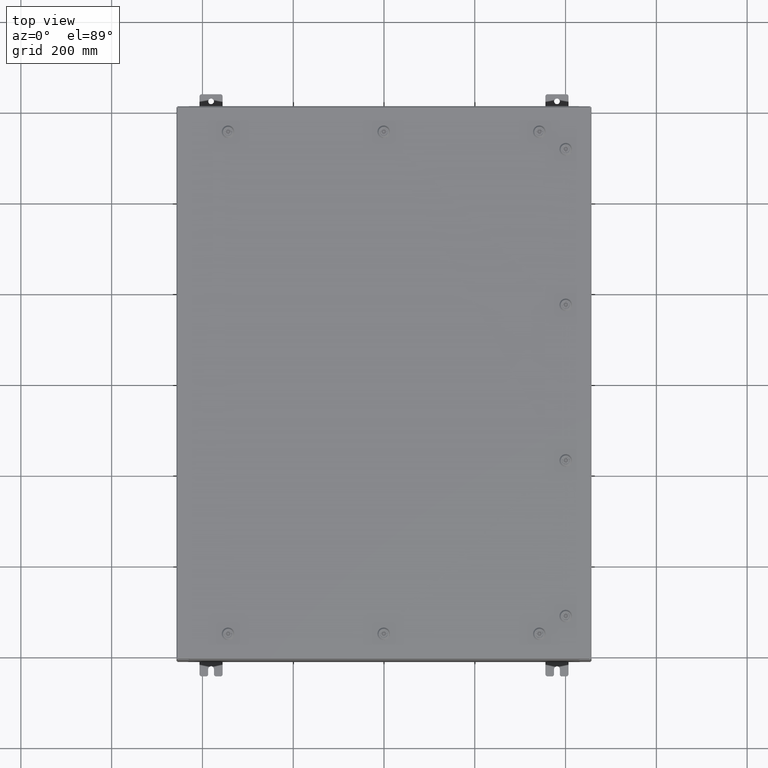
[diagram: clean part render]
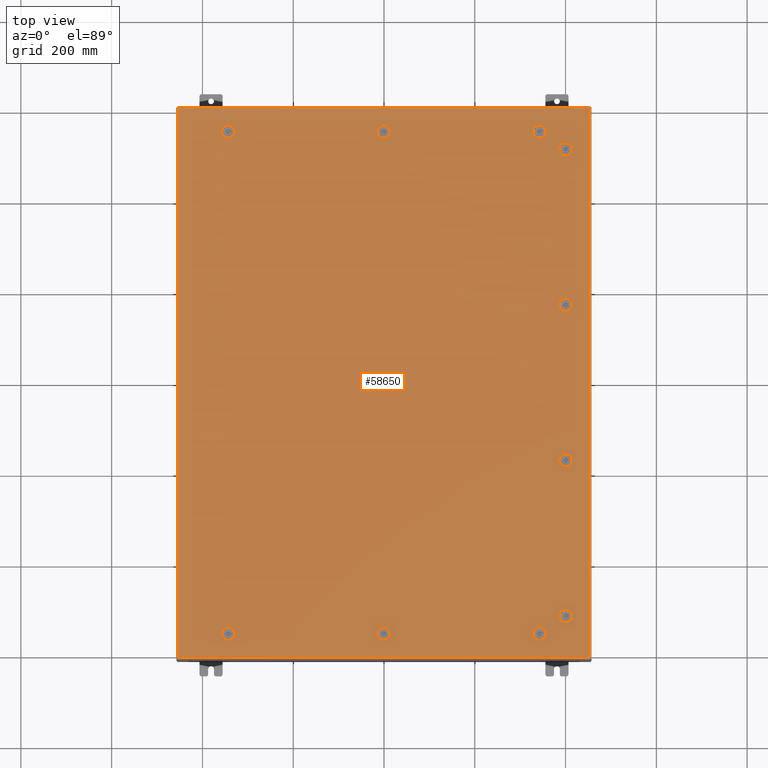
[diagram: same view with one face highlighted and labeled with its STEP entity id]
A machine part, top view. The second image highlights one B-rep face of the part: STEP entity #58650.
In plain terms, the highlighted planar face has unit normal (0, 0, -1).
Its self-contained STEP definition (entity closure, byte-faithful):
#114 = ORIENTED_EDGE ( 'NONE', *, *, #11369, .F. ) ;
#148 = CARTESIAN_POINT ( 'NONE',  ( 1.529834876451987200E-014, 21.78780000000000400, 0.0000000000000000000 ) ) ;
#204 = CARTESIAN_POINT ( 'NONE',  ( 1.529834876451987200E-014, -21.78780000000000400, -2.521317385144146900E-013 ) ) ;
#292 = ORIENTED_EDGE ( 'NONE', *, *, #1717, .F. ) ;
#316 = CARTESIAN_POINT ( 'NONE',  ( -13.05749999999999000, -21.78780000000000800, -2.521317385144146900E-013 ) ) ;
#360 = EDGE_CURVE ( 'NONE', #27199, #56763, #44827, .T. ) ;
#628 = CARTESIAN_POINT ( 'NONE',  ( 0.1994523752679067700, -22.18280000000000000, -2.548900087721007400E-013 ) ) ;
#905 = AXIS2_PLACEMENT_3D ( 'NONE', #148, #37285, #5467 ) ;
#1044 = CARTESIAN_POINT ( 'NONE',  ( -13.49999999999998600, -21.78780000000000800, -2.521317385144146900E-013 ) ) ;
#1289 = CARTESIAN_POINT ( 'NONE',  ( 15.39280000000001200, -6.550547624732131700, 0.0000000000000000000 ) ) ;
#1717 = EDGE_CURVE ( 'NONE', #64540, #63498, #8014, .T. ) ;
#2070 = VERTEX_POINT ( 'NONE', #22425 ) ;
#2235 = CARTESIAN_POINT ( 'NONE',  ( 13.30054762473209500, -22.18280000000000000, -1.620127811158077400E-013 ) ) ;
#2255 = CARTESIAN_POINT ( 'NONE',  ( -17.84979999999998100, 23.84980000000000900, -1.297627796990525000E-015 ) ) ;
#2387 = CARTESIAN_POINT ( 'NONE',  ( 0.1994523752678995500, -21.39280000000001200, -2.493734682567286900E-013 ) ) ;
#2428 = LINE ( 'NONE', #64406, #14943 ) ;
#2475 = DIRECTION ( 'NONE',  ( -6.982962677686266700E-015, -6.982962677686266700E-015, 1.000000000000000000 ) ) ;
#2577 = AXIS2_PLACEMENT_3D ( 'NONE', #47388, #15605, #52720 ) ;
#2673 = AXIS2_PLACEMENT_3D ( 'NONE', #45380, #13589, #50736 ) ;
#2732 = EDGE_CURVE ( 'NONE', #9360, #27199, #29537, .T. ) ;
#3062 = CIRCLE ( 'NONE', #19281, 0.4424999999999961700 ) ;
#3114 = CARTESIAN_POINT ( 'NONE',  ( 15.78780000000001500, 20.25000000000001400, 0.0000000000000000000 ) ) ;
#3214 = EDGE_CURVE ( 'NONE', #6876, #56380, #44478, .T. ) ;
#3348 = CARTESIAN_POINT ( 'NONE',  ( -17.84979999999999800, -23.84980000000000200, 1.946441695485787500E-015 ) ) ;
#3436 = VERTEX_POINT ( 'NONE', #57115 ) ;
#3569 = VERTEX_POINT ( 'NONE', #68678 ) ;
#3762 = CARTESIAN_POINT ( 'NONE',  ( 16.18280000000000700, 6.949452375267900300, 0.0000000000000000000 ) ) ;
#3792 = DIRECTION ( 'NONE',  ( 0.0000000000000000000, 1.000000000000000000, 6.982962677686252500E-015 ) ) ;
#3856 = LINE ( 'NONE', #50158, #60310 ) ;
#3992 = FACE_BOUND ( 'NONE', #67493, .T. ) ;
#4039 = DIRECTION ( 'NONE',  ( 6.982962677686266700E-015, -0.0000000000000000000, 1.000000000000000000 ) ) ;
#4128 = VERTEX_POINT ( 'NONE', #67706 ) ;
#4130 = CIRCLE ( 'NONE', #54337, 0.4424999999999983400 ) ;
#4192 = EDGE_LOOP ( 'NONE', ( #23355, #7007, #17163, #31143, #54867 ) ) ;
#4514 = VERTEX_POINT ( 'NONE', #27669 ) ;
#4670 = ORIENTED_EDGE ( 'NONE', *, *, #34834, .F. ) ;
#4869 = EDGE_CURVE ( 'NONE', #31888, #43983, #6940, .T. ) ;
#5452 = LINE ( 'NONE', #20909, #10474 ) ;
#5467 = DIRECTION ( 'NONE',  ( 1.000000000000000000, 0.0000000000000000000, 0.0000000000000000000 ) ) ;
#5519 = DIRECTION ( 'NONE',  ( 0.0000000000000000000, 1.000000000000000000, 6.982962677686270700E-015 ) ) ;
#5687 = CIRCLE ( 'NONE', #53292, 0.4424999999999972800 ) ;
#5698 = CARTESIAN_POINT ( 'NONE',  ( 15.78780000000001000, 6.750000000000014200, 0.0000000000000000000 ) ) ;
#5859 = ORIENTED_EDGE ( 'NONE', *, *, #360, .F. ) ;
#5868 = VECTOR ( 'NONE', #64708, 39.37007874015748100 ) ;
#6087 = DIRECTION ( 'NONE',  ( 1.095739467627844000E-014, -1.000000000000000000, -6.982962677686384300E-015 ) ) ;
#6234 = VERTEX_POINT ( 'NONE', #41890 ) ;
#6370 = DIRECTION ( 'NONE',  ( 0.0000000000000000000, 1.000000000000000000, 6.982962677686270700E-015 ) ) ;
#6768 = EDGE_CURVE ( 'NONE', #66684, #54772, #32676, .T. ) ;
#6876 = VERTEX_POINT ( 'NONE', #40912 ) ;
#6935 = CARTESIAN_POINT ( 'NONE',  ( -0.1994523752678657400, 22.18280000000000400, 0.0000000000000000000 ) ) ;
#6940 = CIRCLE ( 'NONE', #9236, 0.4424999999999983400 ) ;
#7007 = ORIENTED_EDGE ( 'NONE', *, *, #50921, .F. ) ;
#7156 = DIRECTION ( 'NONE',  ( -0.0000000000000000000, -6.982962677686266700E-015, 1.000000000000000000 ) ) ;
#7293 = DIRECTION ( 'NONE',  ( 1.000000000000000000, -0.0000000000000000000, -0.0000000000000000000 ) ) ;
#7321 = AXIS2_PLACEMENT_3D ( 'NONE', #13591, #50740, #18952 ) ;
#7336 = VECTOR ( 'NONE', #6087, 39.37007874015748100 ) ;
#7376 = VERTEX_POINT ( 'NONE', #63440 ) ;
#8014 = LINE ( 'NONE', #19282, #45407 ) ;
#8020 = AXIS2_PLACEMENT_3D ( 'NONE', #5698, #42850, #11059 ) ;
#8456 = DIRECTION ( 'NONE',  ( 1.000000000000000000, 0.0000000000000000000, 0.0000000000000000000 ) ) ;
#8461 = VECTOR ( 'NONE', #47154, 39.37007874015748100 ) ;
#8500 = AXIS2_PLACEMENT_3D ( 'NONE', #54704, #22913, #60015 ) ;
#8864 = AXIS2_PLACEMENT_3D ( 'NONE', #27132, #22047, #59177 ) ;
#8916 = CIRCLE ( 'NONE', #2673, 0.4424999999999983400 ) ;
#8968 = LINE ( 'NONE', #44402, #46362 ) ;
#9079 = CIRCLE ( 'NONE', #41636, 0.4424999999999983400 ) ;
#9236 = AXIS2_PLACEMENT_3D ( 'NONE', #34290, #2475, #39629 ) ;
#9360 = VERTEX_POINT ( 'NONE', #59868 ) ;
#9420 = VERTEX_POINT ( 'NONE', #6935 ) ;
#9436 = AXIS2_PLACEMENT_3D ( 'NONE', #46056, #14273, #51382 ) ;
#9492 = CARTESIAN_POINT ( 'NONE',  ( 0.1994523752679054600, -22.18280000000000000, -2.548900087721007400E-013 ) ) ;
#9713 = VECTOR ( 'NONE', #48654, 39.37007874015748100 ) ;
#9785 = LINE ( 'NONE', #30525, #67965 ) ;
#9908 = DIRECTION ( 'NONE',  ( -1.000000000000000000, 0.0000000000000000000, 7.785697190086082800E-029 ) ) ;
#10000 = CARTESIAN_POINT ( 'NONE',  ( -13.30054762473209400, 22.18280000000000000, 0.0000000000000000000 ) ) ;
#10077 = EDGE_CURVE ( 'NONE', #4514, #47616, #17546, .T. ) ;
#10338 = CARTESIAN_POINT ( 'NONE',  ( -13.05749999999998900, 21.78780000000000400, 0.0000000000000000000 ) ) ;
#10462 = CARTESIAN_POINT ( 'NONE',  ( 16.18280000000001500, -20.44945237526789600, -1.427977627156185100E-013 ) ) ;
#10474 = VECTOR ( 'NONE', #36678, 39.37007874015748100 ) ;
#10587 = EDGE_LOOP ( 'NONE', ( #57619, #5859, #22052, #16906 ) ) ;
#11059 = DIRECTION ( 'NONE',  ( 1.000000000000000000, 0.0000000000000000000, 0.0000000000000000000 ) ) ;
#11365 = LINE ( 'NONE', #53961, #9713 ) ;
#11369 = EDGE_CURVE ( 'NONE', #56351, #17987, #4130, .T. ) ;
#11452 = EDGE_CURVE ( 'NONE', #67426, #54905, #27351, .T. ) ;
#11551 = EDGE_CURVE ( 'NONE', #56380, #7376, #64712, .T. ) ;
#11611 = CARTESIAN_POINT ( 'NONE',  ( 0.4425000000000125500, 21.78780000000000400, 0.0000000000000000000 ) ) ;
#12126 = ORIENTED_EDGE ( 'NONE', *, *, #6768, .F. ) ;
#12135 = VERTEX_POINT ( 'NONE', #64559 ) ;
#12138 = VERTEX_POINT ( 'NONE', #32767 ) ;
#12416 = AXIS2_PLACEMENT_3D ( 'NONE', #38992, #7156, #44319 ) ;
#12653 = CARTESIAN_POINT ( 'NONE',  ( -17.84979999999999800, -23.84980000000000200, 1.946441695485787500E-015 ) ) ;
#13006 = EDGE_CURVE ( 'NONE', #14936, #31888, #48029, .T. ) ;
#13050 = ORIENTED_EDGE ( 'NONE', *, *, #55539, .F. ) ;
#13354 = CARTESIAN_POINT ( 'NONE',  ( 13.49999999999998600, 21.78780000000000400, -9.426999614876453700E-014 ) ) ;
#13589 = DIRECTION ( 'NONE',  ( -0.0000000000000000000, -6.982962677686266700E-015, 1.000000000000000000 ) ) ;
#13591 = CARTESIAN_POINT ( 'NONE',  ( 13.49999999999998600, 21.78780000000000400, -9.426999614876453700E-014 ) ) ;
#13793 = ORIENTED_EDGE ( 'NONE', *, *, #47158, .F. ) ;
#13927 = AXIS2_PLACEMENT_3D ( 'NONE', #13354, #50482, #18694 ) ;
#14273 = DIRECTION ( 'NONE',  ( 0.0000000000000000000, 0.0000000000000000000, 1.000000000000000000 ) ) ;
#14936 = VERTEX_POINT ( 'NONE', #67712 ) ;
#14943 = VECTOR ( 'NONE', #53960, 39.37007874015748100 ) ;
#15209 = ORIENTED_EDGE ( 'NONE', *, *, #21620, .F. ) ;
#15476 = VECTOR ( 'NONE', #22111, 39.37007874015748100 ) ;
#15605 = DIRECTION ( 'NONE',  ( -0.0000000000000000000, -6.982962677686266700E-015, 1.000000000000000000 ) ) ;
#15709 = CIRCLE ( 'NONE', #38986, 0.4424999999999983400 ) ;
#16043 = CARTESIAN_POINT ( 'NONE',  ( 13.49999999999998600, -21.78780000000000400, -1.578617423656501800E-013 ) ) ;
#16081 = VERTEX_POINT ( 'NONE', #27490 ) ;
#16700 = CARTESIAN_POINT ( 'NONE',  ( 13.30054762473209400, 22.18280000000000000, -9.287722765629296100E-014 ) ) ;
#16736 = PLANE ( 'NONE',  #8864 ) ;
#16906 = ORIENTED_EDGE ( 'NONE', *, *, #45552, .F. ) ;
#17163 = ORIENTED_EDGE ( 'NONE', *, *, #4869, .F. ) ;
#17539 = ORIENTED_EDGE ( 'NONE', *, *, #65737, .F. ) ;
#17544 = CARTESIAN_POINT ( 'NONE',  ( 13.30054762473210400, -21.39280000000001200, -1.564962406004356200E-013 ) ) ;
#17546 = CIRCLE ( 'NONE', #8500, 0.4424999999999983400 ) ;
#17826 = VERTEX_POINT ( 'NONE', #11611 ) ;
#17830 = CARTESIAN_POINT ( 'NONE',  ( 17.84980000000000200, 23.84980000000000900, 1.946441695485787500E-015 ) ) ;
#17973 = ORIENTED_EDGE ( 'NONE', *, *, #59326, .F. ) ;
#17987 = VERTEX_POINT ( 'NONE', #46992 ) ;
#17998 = AXIS2_PLACEMENT_3D ( 'NONE', #67414, #35582, #3792 ) ;
#18120 = FACE_BOUND ( 'NONE', #61796, .T. ) ;
#18251 = DIRECTION ( 'NONE',  ( -0.0000000000000000000, -6.982962677686266700E-015, 1.000000000000000000 ) ) ;
#18375 = DIRECTION ( 'NONE',  ( -5.478697338139235000E-015, 1.000000000000000000, -0.0000000000000000000 ) ) ;
#18548 = AXIS2_PLACEMENT_3D ( 'NONE', #53415, #21637, #58759 ) ;
#18643 = CARTESIAN_POINT ( 'NONE',  ( -13.69945237526786700, 22.18280000000000400, 0.0000000000000000000 ) ) ;
#18694 = DIRECTION ( 'NONE',  ( -1.000000000000000000, 0.0000000000000000000, 6.982962677686269100E-015 ) ) ;
#18952 = DIRECTION ( 'NONE',  ( -1.000000000000000000, 0.0000000000000000000, 6.982962677686270700E-015 ) ) ;
#19126 = VERTEX_POINT ( 'NONE', #2255 ) ;
#19239 = DIRECTION ( 'NONE',  ( -6.982962677686266700E-015, -6.982962677686266700E-015, 1.000000000000000000 ) ) ;
#19281 = AXIS2_PLACEMENT_3D ( 'NONE', #20819, #57964, #26128 ) ;
#19282 = CARTESIAN_POINT ( 'NONE',  ( 0.1994523752678995500, 21.39280000000001200, 0.0000000000000000000 ) ) ;
#19312 = ORIENTED_EDGE ( 'NONE', *, *, #50814, .F. ) ;
#19549 = VECTOR ( 'NONE', #60053, 39.37007874015748100 ) ;
#19705 = CARTESIAN_POINT ( 'NONE',  ( 15.39280000000001500, -6.949452375267905600, -4.852776656685395900E-014 ) ) ;
#19707 = DIRECTION ( 'NONE',  ( 0.0000000000000000000, 0.0000000000000000000, 1.000000000000000000 ) ) ;
#19715 = AXIS2_PLACEMENT_3D ( 'NONE', #56523, #24681, #61829 ) ;
#19824 = FACE_BOUND ( 'NONE', #53210, .T. ) ;
#19835 = DIRECTION ( 'NONE',  ( -1.000000000000000000, -0.0000000000000000000, -0.0000000000000000000 ) ) ;
#19859 = EDGE_CURVE ( 'NONE', #21521, #59043, #28524, .T. ) ;
#19872 = CIRCLE ( 'NONE', #32445, 0.4424999999999983400 ) ;
#20095 = VERTEX_POINT ( 'NONE', #22719 ) ;
#20648 = CARTESIAN_POINT ( 'NONE',  ( 1.529834876451987200E-014, 21.78780000000000400, 0.0000000000000000000 ) ) ;
#20819 = CARTESIAN_POINT ( 'NONE',  ( 15.78780000000001500, 20.25000000000001400, 0.0000000000000000000 ) ) ;
#20909 = CARTESIAN_POINT ( 'NONE',  ( 15.39280000000002200, 20.44945237526790300, 0.0000000000000000000 ) ) ;
#20949 = CIRCLE ( 'NONE', #42824, 0.4424999999999983400 ) ;
#21201 = VECTOR ( 'NONE', #22863, 39.37007874015748100 ) ;
#21339 = AXIS2_PLACEMENT_3D ( 'NONE', #204, #37345, #5519 ) ;
#21362 = DIRECTION ( 'NONE',  ( 1.000000000000000000, 0.0000000000000000000, 6.982962677686270700E-015 ) ) ;
#21521 = VERTEX_POINT ( 'NONE', #9492 ) ;
#21620 = EDGE_CURVE ( 'NONE', #17826, #55172, #67299, .T. ) ;
#21637 = DIRECTION ( 'NONE',  ( 0.0000000000000000000, 0.0000000000000000000, 1.000000000000000000 ) ) ;
#21913 = EDGE_LOOP ( 'NONE', ( #28600, #34782, #41594, #114, #17973 ) ) ;
#22047 = DIRECTION ( 'NONE',  ( 0.0000000000000000000, 0.0000000000000000000, -1.000000000000000000 ) ) ;
#22052 = ORIENTED_EDGE ( 'NONE', *, *, #2732, .F. ) ;
#22111 = DIRECTION ( 'NONE',  ( 5.478697338139235000E-015, 1.000000000000000000, 6.982962677686265900E-015 ) ) ;
#22368 = ORIENTED_EDGE ( 'NONE', *, *, #59760, .F. ) ;
#22425 = CARTESIAN_POINT ( 'NONE',  ( 13.30054762473210400, -21.39280000000001200, -1.564962406004356200E-013 ) ) ;
#22492 = DIRECTION ( 'NONE',  ( 5.478697338139280000E-015, 1.000000000000000000, 6.982962677686382700E-015 ) ) ;
#22529 = CARTESIAN_POINT ( 'NONE',  ( 15.39280000000001500, -6.949452375267904700, -4.852776656685395200E-014 ) ) ;
#22703 = CARTESIAN_POINT ( 'NONE',  ( -13.30054762473209500, -22.18280000000000400, -2.548900087721007400E-013 ) ) ;
#22719 = CARTESIAN_POINT ( 'NONE',  ( -13.69945237526786900, 21.39280000000001200, 0.0000000000000000000 ) ) ;
#22863 = DIRECTION ( 'NONE',  ( -1.000000000000000000, -0.0000000000000000000, -6.982962677686265900E-015 ) ) ;
#22913 = DIRECTION ( 'NONE',  ( 0.0000000000000000000, 0.0000000000000000000, 1.000000000000000000 ) ) ;
#23167 = EDGE_CURVE ( 'NONE', #9420, #64540, #52230, .T. ) ;
#23295 = DIRECTION ( 'NONE',  ( -5.478697338139280000E-015, 1.000000000000000000, -0.0000000000000000000 ) ) ;
#23355 = ORIENTED_EDGE ( 'NONE', *, *, #27429, .F. ) ;
#23386 = LINE ( 'NONE', #64690, #64058 ) ;
#23977 = LINE ( 'NONE', #12653, #36411 ) ;
#24666 = ORIENTED_EDGE ( 'NONE', *, *, #11551, .F. ) ;
#24681 = DIRECTION ( 'NONE',  ( -0.0000000000000000000, -6.982962677686266700E-015, 1.000000000000000000 ) ) ;
#24902 = CIRCLE ( 'NONE', #47113, 0.4424999999999961700 ) ;
#25017 = CARTESIAN_POINT ( 'NONE',  ( 1.529834876451987200E-014, -21.78780000000000400, -2.521317385144146900E-013 ) ) ;
#25182 = CARTESIAN_POINT ( 'NONE',  ( 15.39280000000002800, -20.44945237526790300, -1.427977627156185100E-013 ) ) ;
#25293 = ORIENTED_EDGE ( 'NONE', *, *, #34950, .F. ) ;
#25309 = EDGE_CURVE ( 'NONE', #68803, #16081, #3062, .T. ) ;
#25574 = CIRCLE ( 'NONE', #12416, 0.4424999999999983400 ) ;
#25596 = EDGE_CURVE ( 'NONE', #56763, #56043, #63674, .T. ) ;
#25963 = DIRECTION ( 'NONE',  ( 1.000000000000000000, 0.0000000000000000000, 0.0000000000000000000 ) ) ;
#26128 = DIRECTION ( 'NONE',  ( 1.000000000000000000, 0.0000000000000000000, 0.0000000000000000000 ) ) ;
#26371 = VERTEX_POINT ( 'NONE', #10462 ) ;
#26799 = CARTESIAN_POINT ( 'NONE',  ( 16.18280000000000700, -6.550547624732131700, -4.574222958191090100E-014 ) ) ;
#27132 = CARTESIAN_POINT ( 'NONE',  ( 0.0000000000000000000, 0.0000000000000000000, 0.0000000000000000000 ) ) ;
#27199 = VERTEX_POINT ( 'NONE', #26799 ) ;
#27351 = LINE ( 'NONE', #33537, #68095 ) ;
#27429 = EDGE_CURVE ( 'NONE', #62252, #2070, #35310, .T. ) ;
#27490 = CARTESIAN_POINT ( 'NONE',  ( 16.18280000000001500, 20.05054762473213300, 0.0000000000000000000 ) ) ;
#27669 = CARTESIAN_POINT ( 'NONE',  ( -13.30054762473210200, 21.39280000000001200, 0.0000000000000000000 ) ) ;
#27712 = VERTEX_POINT ( 'NONE', #40490 ) ;
#28184 = DIRECTION ( 'NONE',  ( -0.0000000000000000000, -6.982962677686266700E-015, 1.000000000000000000 ) ) ;
#28278 = CARTESIAN_POINT ( 'NONE',  ( 13.69945237526786900, -22.18280000000000400, -1.592272441308647100E-013 ) ) ;
#28524 = CIRCLE ( 'NONE', #21339, 0.4424999999999983400 ) ;
#28600 = ORIENTED_EDGE ( 'NONE', *, *, #68829, .F. ) ;
#28653 = EDGE_CURVE ( 'NONE', #37449, #3436, #9079, .T. ) ;
#28693 = DIRECTION ( 'NONE',  ( 1.000000000000000000, -1.095739467627832000E-014, 6.982962677686152300E-015 ) ) ;
#28810 = DIRECTION ( 'NONE',  ( 0.0000000000000000000, 0.0000000000000000000, 1.000000000000000000 ) ) ;
#28915 = ORIENTED_EDGE ( 'NONE', *, *, #53132, .F. ) ;
#29217 = ORIENTED_EDGE ( 'NONE', *, *, #28653, .F. ) ;
#29227 = ORIENTED_EDGE ( 'NONE', *, *, #25309, .F. ) ;
#29256 = VERTEX_POINT ( 'NONE', #29552 ) ;
#29361 = EDGE_CURVE ( 'NONE', #54772, #54523, #15709, .T. ) ;
#29537 = LINE ( 'NONE', #48588, #15476 ) ;
#29552 = CARTESIAN_POINT ( 'NONE',  ( 16.18280000000000700, 6.550547624732131700, 0.0000000000000000000 ) ) ;
#29707 = CARTESIAN_POINT ( 'NONE',  ( 13.69945237526787100, -21.39280000000001200, 0.0000000000000000000 ) ) ;
#30179 = CIRCLE ( 'NONE', #19715, 0.4424999999999983400 ) ;
#30351 = DIRECTION ( 'NONE',  ( 0.0000000000000000000, 1.000000000000000000, 6.982962677686270700E-015 ) ) ;
#30446 = ORIENTED_EDGE ( 'NONE', *, *, #41251, .F. ) ;
#30525 = CARTESIAN_POINT ( 'NONE',  ( 15.39280000000001900, 6.949452375267904700, 0.0000000000000000000 ) ) ;
#30574 = FACE_OUTER_BOUND ( 'NONE', #58580, .T. ) ;
#30841 = ORIENTED_EDGE ( 'NONE', *, *, #42975, .F. ) ;
#31143 = ORIENTED_EDGE ( 'NONE', *, *, #13006, .F. ) ;
#31387 = ORIENTED_EDGE ( 'NONE', *, *, #23167, .F. ) ;
#31496 = EDGE_CURVE ( 'NONE', #6234, #12135, #35468, .T. ) ;
#31554 = EDGE_LOOP ( 'NONE', ( #30446, #13793, #19312, #30841, #57668 ) ) ;
#31621 = LINE ( 'NONE', #628, #44084 ) ;
#31849 = EDGE_LOOP ( 'NONE', ( #58789, #17539, #60834, #29217 ) ) ;
#31888 = VERTEX_POINT ( 'NONE', #28278 ) ;
#32210 = FACE_BOUND ( 'NONE', #21913, .T. ) ;
#32302 = VERTEX_POINT ( 'NONE', #3348 ) ;
#32445 = AXIS2_PLACEMENT_3D ( 'NONE', #1044, #38217, #6370 ) ;
#32501 = EDGE_CURVE ( 'NONE', #4128, #68803, #5452, .T. ) ;
#32676 = LINE ( 'NONE', #45565, #59254 ) ;
#32767 = CARTESIAN_POINT ( 'NONE',  ( 15.39280000000001400, 6.550547624732131700, 0.0000000000000000000 ) ) ;
#32914 = DIRECTION ( 'NONE',  ( 0.0000000000000000000, -1.000000000000000000, 0.0000000000000000000 ) ) ;
#33130 = CARTESIAN_POINT ( 'NONE',  ( 13.94249999999998500, -21.78780000000000400, -1.547717813807740000E-013 ) ) ;
#33375 = AXIS2_PLACEMENT_3D ( 'NONE', #3114, #40281, #8456 ) ;
#33537 = CARTESIAN_POINT ( 'NONE',  ( 13.30054762473209400, 22.18280000000000000, -9.287722765629296100E-014 ) ) ;
#33900 = VERTEX_POINT ( 'NONE', #51545 ) ;
#34290 = CARTESIAN_POINT ( 'NONE',  ( 13.49999999999998600, -21.78780000000000400, -1.578617423656501800E-013 ) ) ;
#34600 = ORIENTED_EDGE ( 'NONE', *, *, #63229, .T. ) ;
#34766 = CARTESIAN_POINT ( 'NONE',  ( -0.1994523752678689600, -21.39280000000001200, -2.493734682567286400E-013 ) ) ;
#34782 = ORIENTED_EDGE ( 'NONE', *, *, #64028, .F. ) ;
#34834 = EDGE_CURVE ( 'NONE', #60796, #4128, #52344, .T. ) ;
#34950 = EDGE_CURVE ( 'NONE', #7376, #67426, #50676, .T. ) ;
#35022 = DIRECTION ( 'NONE',  ( 1.000000000000000000, -0.0000000000000000000, -0.0000000000000000000 ) ) ;
#35310 = LINE ( 'NONE', #17544, #21201 ) ;
#35468 = CIRCLE ( 'NONE', #2577, 0.4424999999999983400 ) ;
#35485 = CIRCLE ( 'NONE', #905, 0.4424999999999972800 ) ;
#35582 = DIRECTION ( 'NONE',  ( -0.0000000000000000000, -6.982962677686266700E-015, 1.000000000000000000 ) ) ;
#35855 = CARTESIAN_POINT ( 'NONE',  ( 13.49999999999998600, 21.78780000000000400, -9.426999614876453700E-014 ) ) ;
#36294 = EDGE_CURVE ( 'NONE', #12135, #67680, #65484, .T. ) ;
#36411 = VECTOR ( 'NONE', #7293, 39.37007874015748100 ) ;
#36499 = VECTOR ( 'NONE', #9908, 39.37007874015748100 ) ;
#36678 = DIRECTION ( 'NONE',  ( -1.095739467627844000E-014, -1.000000000000000000, 0.0000000000000000000 ) ) ;
#37168 = EDGE_CURVE ( 'NONE', #16081, #60796, #8968, .T. ) ;
#37204 = FACE_BOUND ( 'NONE', #10587, .T. ) ;
#37285 = DIRECTION ( 'NONE',  ( 0.0000000000000000000, 0.0000000000000000000, 1.000000000000000000 ) ) ;
#37345 = DIRECTION ( 'NONE',  ( -0.0000000000000000000, -6.982962677686266700E-015, 1.000000000000000000 ) ) ;
#37449 = VERTEX_POINT ( 'NONE', #3762 ) ;
#37920 = CARTESIAN_POINT ( 'NONE',  ( 15.39280000000002800, -20.44945237526790300, -1.427977627156185600E-013 ) ) ;
#38217 = DIRECTION ( 'NONE',  ( -0.0000000000000000000, -6.982962677686266700E-015, 1.000000000000000000 ) ) ;
#38732 = CARTESIAN_POINT ( 'NONE',  ( 15.39280000000001900, 20.05054762473213300, 0.0000000000000000000 ) ) ;
#38986 = AXIS2_PLACEMENT_3D ( 'NONE', #25017, #62156, #30351 ) ;
#38992 = CARTESIAN_POINT ( 'NONE',  ( 15.78780000000001800, -20.25000000000001400, -1.414049942231469700E-013 ) ) ;
#39629 = DIRECTION ( 'NONE',  ( 1.000000000000000000, 0.0000000000000000000, 6.982962677686270700E-015 ) ) ;
#40225 = DIRECTION ( 'NONE',  ( -1.000000000000000000, 0.0000000000000000000, 7.785697190086061500E-029 ) ) ;
#40281 = DIRECTION ( 'NONE',  ( 0.0000000000000000000, 0.0000000000000000000, 1.000000000000000000 ) ) ;
#40490 = CARTESIAN_POINT ( 'NONE',  ( -13.69945237526787100, -21.39280000000001500, -2.493734682567286400E-013 ) ) ;
#40912 = CARTESIAN_POINT ( 'NONE',  ( 13.30054762473210200, 21.39280000000001200, -9.287722765629301200E-014 ) ) ;
#40967 = EDGE_LOOP ( 'NONE', ( #292, #31387, #22368, #15209, #62893 ) ) ;
#41185 = DIRECTION ( 'NONE',  ( -1.000000000000000000, 0.0000000000000000000, 6.982962677686269100E-015 ) ) ;
#41205 = DIRECTION ( 'NONE',  ( -1.095739467627835000E-014, -1.000000000000000000, 0.0000000000000000000 ) ) ;
#41251 = EDGE_CURVE ( 'NONE', #20095, #4514, #48287, .T. ) ;
#41594 = ORIENTED_EDGE ( 'NONE', *, *, #45019, .F. ) ;
#41636 = AXIS2_PLACEMENT_3D ( 'NONE', #51465, #19707, #56837 ) ;
#41712 = CARTESIAN_POINT ( 'NONE',  ( -13.30054762473210400, -21.39280000000001500, -2.493734682567286900E-013 ) ) ;
#41890 = CARTESIAN_POINT ( 'NONE',  ( 16.18280000000001800, -20.05054762473213300, -1.400122257306754800E-013 ) ) ;
#42824 = AXIS2_PLACEMENT_3D ( 'NONE', #16043, #53147, #21362 ) ;
#42850 = DIRECTION ( 'NONE',  ( 0.0000000000000000000, 0.0000000000000000000, 1.000000000000000000 ) ) ;
#42975 = EDGE_CURVE ( 'NONE', #47616, #33900, #51486, .T. ) ;
#43983 = VERTEX_POINT ( 'NONE', #33130 ) ;
#44084 = VECTOR ( 'NONE', #64466, 39.37007874015748100 ) ;
#44319 = DIRECTION ( 'NONE',  ( 0.0000000000000000000, 1.000000000000000000, 6.982962677686235200E-015 ) ) ;
#44402 = CARTESIAN_POINT ( 'NONE',  ( 16.18280000000001100, 20.44945237526789600, 0.0000000000000000000 ) ) ;
#44478 = LINE ( 'NONE', #55739, #56974 ) ;
#44518 = EDGE_CURVE ( 'NONE', #26371, #6234, #52212, .T. ) ;
#44683 = FACE_BOUND ( 'NONE', #40967, .T. ) ;
#44827 = CIRCLE ( 'NONE', #17998, 0.4424999999999983400 ) ;
#45019 = EDGE_CURVE ( 'NONE', #17987, #27712, #48970, .T. ) ;
#45125 = CARTESIAN_POINT ( 'NONE',  ( 0.1994523752679054600, 22.18280000000000000, 0.0000000000000000000 ) ) ;
#45209 = ORIENTED_EDGE ( 'NONE', *, *, #31496, .F. ) ;
#45380 = CARTESIAN_POINT ( 'NONE',  ( -13.49999999999998600, -21.78780000000000800, -2.521317385144146900E-013 ) ) ;
#45407 = VECTOR ( 'NONE', #35022, 39.37007874015748100 ) ;
#45552 = EDGE_CURVE ( 'NONE', #56043, #9360, #5687, .T. ) ;
#45565 = CARTESIAN_POINT ( 'NONE',  ( 0.1994523752678995500, -21.39280000000001200, -2.493734682567286900E-013 ) ) ;
#45625 = CARTESIAN_POINT ( 'NONE',  ( -0.1994523752678689600, 21.39280000000001200, 0.0000000000000000000 ) ) ;
#45666 = CARTESIAN_POINT ( 'NONE',  ( 16.18280000000001100, 20.44945237526789600, 0.0000000000000000000 ) ) ;
#45694 = ORIENTED_EDGE ( 'NONE', *, *, #58833, .F. ) ;
#46056 = CARTESIAN_POINT ( 'NONE',  ( 1.529834876451987200E-014, 21.78780000000000400, 0.0000000000000000000 ) ) ;
#46362 = VECTOR ( 'NONE', #23295, 39.37007874015748100 ) ;
#46384 = FACE_BOUND ( 'NONE', #47647, .T. ) ;
#46759 = EDGE_CURVE ( 'NONE', #3436, #12138, #9785, .T. ) ;
#46992 = CARTESIAN_POINT ( 'NONE',  ( -13.30054762473210400, -21.39280000000001500, -2.493734682567286900E-013 ) ) ;
#46997 = CARTESIAN_POINT ( 'NONE',  ( -13.30054762473209500, -22.18280000000000400, -2.548900087721007400E-013 ) ) ;
#47083 = ORIENTED_EDGE ( 'NONE', *, *, #66890, .T. ) ;
#47113 = AXIS2_PLACEMENT_3D ( 'NONE', #51002, #19239, #56370 ) ;
#47154 = DIRECTION ( 'NONE',  ( -1.000000000000000000, 1.095739467627832000E-014, 0.0000000000000000000 ) ) ;
#47158 = EDGE_CURVE ( 'NONE', #56927, #20095, #54401, .T. ) ;
#47388 = CARTESIAN_POINT ( 'NONE',  ( 15.78780000000001800, -20.25000000000001400, -1.414049942231469700E-013 ) ) ;
#47616 = VERTEX_POINT ( 'NONE', #10338 ) ;
#47647 = EDGE_LOOP ( 'NONE', ( #50280, #29227, #65399, #4670 ) ) ;
#48029 = LINE ( 'NONE', #2235, #60466 ) ;
#48287 = LINE ( 'NONE', #64486, #5868 ) ;
#48588 = CARTESIAN_POINT ( 'NONE',  ( 16.18280000000000400, -6.949452375267900300, -4.852776656685392100E-014 ) ) ;
#48654 = DIRECTION ( 'NONE',  ( -1.000000000000000000, 1.095739467627836100E-014, 0.0000000000000000000 ) ) ;
#48707 = CARTESIAN_POINT ( 'NONE',  ( 13.69945237526786700, 22.18280000000000400, 0.0000000000000000000 ) ) ;
#48970 = LINE ( 'NONE', #41712, #36499 ) ;
#49177 = LINE ( 'NONE', #10000, #8461 ) ;
#49209 = EDGE_CURVE ( 'NONE', #59043, #66684, #30179, .T. ) ;
#49417 = LINE ( 'NONE', #22703, #19549 ) ;
#49541 = VECTOR ( 'NONE', #19835, 39.37007874015748100 ) ;
#50043 = CARTESIAN_POINT ( 'NONE',  ( 15.78780000000000800, -6.750000000000014200, -4.713499807438240100E-014 ) ) ;
#50083 = ORIENTED_EDGE ( 'NONE', *, *, #49209, .F. ) ;
#50158 = CARTESIAN_POINT ( 'NONE',  ( 16.18280000000000700, 6.949452375267900300, 0.0000000000000000000 ) ) ;
#50280 = ORIENTED_EDGE ( 'NONE', *, *, #37168, .F. ) ;
#50482 = DIRECTION ( 'NONE',  ( 6.982962677686266700E-015, -0.0000000000000000000, 1.000000000000000000 ) ) ;
#50676 = CIRCLE ( 'NONE', #58302, 0.4424999999999961700 ) ;
#50736 = DIRECTION ( 'NONE',  ( 0.0000000000000000000, 1.000000000000000000, 6.982962677686270700E-015 ) ) ;
#50740 = DIRECTION ( 'NONE',  ( 6.982962677686266700E-015, -0.0000000000000000000, 1.000000000000000000 ) ) ;
#50780 = CARTESIAN_POINT ( 'NONE',  ( -13.69945237526786900, -22.18280000000000700, 0.0000000000000000000 ) ) ;
#50814 = EDGE_CURVE ( 'NONE', #33900, #56927, #49177, .T. ) ;
#50921 = EDGE_CURVE ( 'NONE', #43983, #62252, #20949, .T. ) ;
#51002 = CARTESIAN_POINT ( 'NONE',  ( 13.49999999999998600, -21.78780000000000400, -1.578617423656501800E-013 ) ) ;
#51382 = DIRECTION ( 'NONE',  ( 1.000000000000000000, 0.0000000000000000000, 0.0000000000000000000 ) ) ;
#51465 = CARTESIAN_POINT ( 'NONE',  ( 15.78780000000001000, 6.750000000000014200, 0.0000000000000000000 ) ) ;
#51486 = CIRCLE ( 'NONE', #18548, 0.4424999999999983400 ) ;
#51496 = VECTOR ( 'NONE', #22492, 39.37007874015748100 ) ;
#51538 = ORIENTED_EDGE ( 'NONE', *, *, #19859, .F. ) ;
#51545 = CARTESIAN_POINT ( 'NONE',  ( -13.30054762473209400, 22.18280000000000000, 0.0000000000000000000 ) ) ;
#52212 = LINE ( 'NONE', #54277, #51496 ) ;
#52230 = CIRCLE ( 'NONE', #9436, 0.4424999999999969000 ) ;
#52344 = CIRCLE ( 'NONE', #33375, 0.4424999999999961700 ) ;
#52477 = ORIENTED_EDGE ( 'NONE', *, *, #29361, .F. ) ;
#52720 = DIRECTION ( 'NONE',  ( 0.0000000000000000000, 1.000000000000000000, 6.982962677686235200E-015 ) ) ;
#53132 = EDGE_CURVE ( 'NONE', #54905, #6876, #65602, .T. ) ;
#53147 = DIRECTION ( 'NONE',  ( -6.982962677686266700E-015, -6.982962677686266700E-015, 1.000000000000000000 ) ) ;
#53210 = EDGE_LOOP ( 'NONE', ( #54124, #45209, #58348, #45694 ) ) ;
#53292 = AXIS2_PLACEMENT_3D ( 'NONE', #50043, #18251, #55395 ) ;
#53415 = CARTESIAN_POINT ( 'NONE',  ( -13.49999999999998600, 21.78780000000000400, 0.0000000000000000000 ) ) ;
#53878 = CARTESIAN_POINT ( 'NONE',  ( 0.1994523752678995500, 21.39280000000001200, 0.0000000000000000000 ) ) ;
#53906 = ORIENTED_EDGE ( 'NONE', *, *, #3214, .F. ) ;
#53960 = DIRECTION ( 'NONE',  ( 0.0000000000000000000, 1.000000000000000000, 0.0000000000000000000 ) ) ;
#53961 = CARTESIAN_POINT ( 'NONE',  ( 0.1994523752679067700, 22.18280000000000000, 0.0000000000000000000 ) ) ;
#54124 = ORIENTED_EDGE ( 'NONE', *, *, #36294, .F. ) ;
#54277 = CARTESIAN_POINT ( 'NONE',  ( 16.18280000000001500, -20.44945237526789600, -1.427977627156185100E-013 ) ) ;
#54302 = ORIENTED_EDGE ( 'NONE', *, *, #11452, .F. ) ;
#54337 = AXIS2_PLACEMENT_3D ( 'NONE', #59980, #28184, #65314 ) ;
#54401 = CIRCLE ( 'NONE', #66747, 0.4424999999999961700 ) ;
#54523 = VERTEX_POINT ( 'NONE', #59920 ) ;
#54704 = CARTESIAN_POINT ( 'NONE',  ( -13.49999999999998600, 21.78780000000000400, 0.0000000000000000000 ) ) ;
#54772 = VERTEX_POINT ( 'NONE', #34766 ) ;
#54867 = ORIENTED_EDGE ( 'NONE', *, *, #62929, .F. ) ;
#54905 = VERTEX_POINT ( 'NONE', #16700 ) ;
#54993 = EDGE_CURVE ( 'NONE', #19126, #32302, #23386, .T. ) ;
#55172 = VERTEX_POINT ( 'NONE', #45125 ) ;
#55395 = DIRECTION ( 'NONE',  ( 0.0000000000000000000, 1.000000000000000000, 6.982962677686269100E-015 ) ) ;
#55496 = DIRECTION ( 'NONE',  ( 1.000000000000000000, 0.0000000000000000000, -6.982962677686306200E-015 ) ) ;
#55539 = EDGE_CURVE ( 'NONE', #54523, #21521, #31621, .T. ) ;
#55739 = CARTESIAN_POINT ( 'NONE',  ( 13.30054762473210200, 21.39280000000001200, -9.287722765629301200E-014 ) ) ;
#56043 = VERTEX_POINT ( 'NONE', #19705 ) ;
#56351 = VERTEX_POINT ( 'NONE', #316 ) ;
#56370 = DIRECTION ( 'NONE',  ( 1.000000000000000000, 0.0000000000000000000, 6.982962677686304600E-015 ) ) ;
#56380 = VERTEX_POINT ( 'NONE', #58832 ) ;
#56523 = CARTESIAN_POINT ( 'NONE',  ( 1.529834876451987200E-014, -21.78780000000000400, -2.521317385144146900E-013 ) ) ;
#56763 = VERTEX_POINT ( 'NONE', #1289 ) ;
#56837 = DIRECTION ( 'NONE',  ( 1.000000000000000000, 0.0000000000000000000, 0.0000000000000000000 ) ) ;
#56927 = VERTEX_POINT ( 'NONE', #18643 ) ;
#56974 = VECTOR ( 'NONE', #55496, 39.37007874015748100 ) ;
#57115 = CARTESIAN_POINT ( 'NONE',  ( 15.39280000000001900, 6.949452375267904700, 0.0000000000000000000 ) ) ;
#57619 = ORIENTED_EDGE ( 'NONE', *, *, #25596, .F. ) ;
#57668 = ORIENTED_EDGE ( 'NONE', *, *, #10077, .F. ) ;
#57787 = DIRECTION ( 'NONE',  ( 0.0000000000000000000, 0.0000000000000000000, 1.000000000000000000 ) ) ;
#57964 = DIRECTION ( 'NONE',  ( 0.0000000000000000000, 0.0000000000000000000, 1.000000000000000000 ) ) ;
#58302 = AXIS2_PLACEMENT_3D ( 'NONE', #35855, #4039, #41185 ) ;
#58348 = ORIENTED_EDGE ( 'NONE', *, *, #44518, .F. ) ;
#58580 = EDGE_LOOP ( 'NONE', ( #65877, #34600, #47083, #65541 ) ) ;
#58650 = ADVANCED_FACE ( 'NONE', ( #19824, #37204, #46384, #60456, #62160, #32210, #18120, #3992, #58797, #44683, #30574 ), #16736, .F. ) ;
#58759 = DIRECTION ( 'NONE',  ( 1.000000000000000000, 0.0000000000000000000, 0.0000000000000000000 ) ) ;
#58789 = ORIENTED_EDGE ( 'NONE', *, *, #66986, .F. ) ;
#58797 = FACE_BOUND ( 'NONE', #31554, .T. ) ;
#58832 = CARTESIAN_POINT ( 'NONE',  ( 13.69945237526786900, 21.39280000000001200, -9.566276464123603800E-014 ) ) ;
#58833 = EDGE_CURVE ( 'NONE', #67680, #26371, #25574, .T. ) ;
#59043 = VERTEX_POINT ( 'NONE', #62687 ) ;
#59177 = DIRECTION ( 'NONE',  ( -1.000000000000000000, 0.0000000000000000000, -0.0000000000000000000 ) ) ;
#59254 = VECTOR ( 'NONE', #40225, 39.37007874015748100 ) ;
#59326 = EDGE_CURVE ( 'NONE', #64730, #56351, #8916, .T. ) ;
#59760 = EDGE_CURVE ( 'NONE', #55172, #9420, #11365, .T. ) ;
#59868 = CARTESIAN_POINT ( 'NONE',  ( 16.18280000000000400, -6.949452375267900300, -4.852776656685392100E-014 ) ) ;
#59920 = CARTESIAN_POINT ( 'NONE',  ( -0.1994523752678657400, -22.18280000000000700, 0.0000000000000000000 ) ) ;
#59980 = CARTESIAN_POINT ( 'NONE',  ( -13.49999999999998600, -21.78780000000000800, -2.521317385144146900E-013 ) ) ;
#60015 = DIRECTION ( 'NONE',  ( 1.000000000000000000, 0.0000000000000000000, 0.0000000000000000000 ) ) ;
#60053 = DIRECTION ( 'NONE',  ( 1.000000000000000000, 1.095739467627832000E-014, 7.785697190085955000E-029 ) ) ;
#60310 = VECTOR ( 'NONE', #18375, 39.37007874015748100 ) ;
#60325 = VECTOR ( 'NONE', #64384, 39.37007874015748100 ) ;
#60456 = FACE_BOUND ( 'NONE', #31849, .T. ) ;
#60466 = VECTOR ( 'NONE', #28693, 39.37007874015748100 ) ;
#60626 = CARTESIAN_POINT ( 'NONE',  ( -13.49999999999998600, 21.78780000000000400, 0.0000000000000000000 ) ) ;
#60796 = VERTEX_POINT ( 'NONE', #45666 ) ;
#60834 = ORIENTED_EDGE ( 'NONE', *, *, #46759, .F. ) ;
#61796 = EDGE_LOOP ( 'NONE', ( #13050, #52477, #12126, #50083, #51538 ) ) ;
#61829 = DIRECTION ( 'NONE',  ( 0.0000000000000000000, 1.000000000000000000, 6.982962677686270700E-015 ) ) ;
#62156 = DIRECTION ( 'NONE',  ( -0.0000000000000000000, -6.982962677686266700E-015, 1.000000000000000000 ) ) ;
#62160 = FACE_BOUND ( 'NONE', #4192, .T. ) ;
#62252 = VERTEX_POINT ( 'NONE', #29707 ) ;
#62687 = CARTESIAN_POINT ( 'NONE',  ( 0.4425000000000125500, -21.78780000000000400, -2.521317385144146900E-013 ) ) ;
#62810 = VERTEX_POINT ( 'NONE', #17830 ) ;
#62893 = ORIENTED_EDGE ( 'NONE', *, *, #65657, .F. ) ;
#62927 = VERTEX_POINT ( 'NONE', #50780 ) ;
#62929 = EDGE_CURVE ( 'NONE', #2070, #14936, #24902, .T. ) ;
#63229 = EDGE_CURVE ( 'NONE', #3569, #62810, #2428, .T. ) ;
#63440 = CARTESIAN_POINT ( 'NONE',  ( 13.94249999999998300, 21.78780000000000400, -9.735995713364067600E-014 ) ) ;
#63498 = VERTEX_POINT ( 'NONE', #53878 ) ;
#63656 = LINE ( 'NONE', #67406, #49541 ) ;
#63674 = LINE ( 'NONE', #22529, #60325 ) ;
#63710 = CIRCLE ( 'NONE', #8020, 0.4424999999999983400 ) ;
#64028 = EDGE_CURVE ( 'NONE', #27712, #62927, #19872, .T. ) ;
#64058 = VECTOR ( 'NONE', #32914, 39.37007874015748100 ) ;
#64384 = DIRECTION ( 'NONE',  ( 1.095739467627835000E-014, -1.000000000000000000, -6.982962677686269100E-015 ) ) ;
#64406 = CARTESIAN_POINT ( 'NONE',  ( 17.84980000000000200, -23.84980000000000200, -2.048885995248197400E-016 ) ) ;
#64415 = EDGE_CURVE ( 'NONE', #32302, #3569, #23977, .T. ) ;
#64466 = DIRECTION ( 'NONE',  ( 1.000000000000000000, 1.095739467627836100E-014, 7.785697190085984100E-029 ) ) ;
#64486 = CARTESIAN_POINT ( 'NONE',  ( -13.30054762473210200, 21.39280000000001200, 0.0000000000000000000 ) ) ;
#64540 = VERTEX_POINT ( 'NONE', #45625 ) ;
#64559 = CARTESIAN_POINT ( 'NONE',  ( 15.39280000000002200, -20.05054762473213300, 0.0000000000000000000 ) ) ;
#64690 = CARTESIAN_POINT ( 'NONE',  ( -17.84979999999998100, 23.84980000000000900, -1.297627796990525000E-015 ) ) ;
#64708 = DIRECTION ( 'NONE',  ( 1.000000000000000000, -0.0000000000000000000, -0.0000000000000000000 ) ) ;
#64712 = CIRCLE ( 'NONE', #13927, 0.4424999999999961700 ) ;
#64730 = VERTEX_POINT ( 'NONE', #46997 ) ;
#65314 = DIRECTION ( 'NONE',  ( 0.0000000000000000000, 1.000000000000000000, 6.982962677686270700E-015 ) ) ;
#65399 = ORIENTED_EDGE ( 'NONE', *, *, #32501, .F. ) ;
#65484 = LINE ( 'NONE', #37920, #7336 ) ;
#65541 = ORIENTED_EDGE ( 'NONE', *, *, #54993, .T. ) ;
#65552 = DIRECTION ( 'NONE',  ( -1.000000000000000000, -1.095739467627832000E-014, 6.982962677686228800E-015 ) ) ;
#65602 = CIRCLE ( 'NONE', #7321, 0.4424999999999983400 ) ;
#65657 = EDGE_CURVE ( 'NONE', #63498, #17826, #35485, .T. ) ;
#65737 = EDGE_CURVE ( 'NONE', #12138, #29256, #63710, .T. ) ;
#65856 = AXIS2_PLACEMENT_3D ( 'NONE', #20648, #57787, #25963 ) ;
#65877 = ORIENTED_EDGE ( 'NONE', *, *, #64415, .T. ) ;
#65970 = DIRECTION ( 'NONE',  ( 1.000000000000000000, 0.0000000000000000000, 0.0000000000000000000 ) ) ;
#66684 = VERTEX_POINT ( 'NONE', #2387 ) ;
#66747 = AXIS2_PLACEMENT_3D ( 'NONE', #60626, #28810, #65970 ) ;
#66890 = EDGE_CURVE ( 'NONE', #62810, #19126, #63656, .T. ) ;
#66986 = EDGE_CURVE ( 'NONE', #29256, #37449, #3856, .T. ) ;
#67299 = CIRCLE ( 'NONE', #65856, 0.4424999999999972800 ) ;
#67406 = CARTESIAN_POINT ( 'NONE',  ( 17.84980000000000200, 23.84980000000000900, 1.946441695485787500E-015 ) ) ;
#67414 = CARTESIAN_POINT ( 'NONE',  ( 15.78780000000000800, -6.750000000000014200, -4.713499807438240100E-014 ) ) ;
#67426 = VERTEX_POINT ( 'NONE', #48707 ) ;
#67493 = EDGE_LOOP ( 'NONE', ( #54302, #25293, #24666, #53906, #28915 ) ) ;
#67680 = VERTEX_POINT ( 'NONE', #25182 ) ;
#67706 = CARTESIAN_POINT ( 'NONE',  ( 15.39280000000002200, 20.44945237526790300, 0.0000000000000000000 ) ) ;
#67712 = CARTESIAN_POINT ( 'NONE',  ( 13.30054762473209500, -22.18280000000000000, -1.620127811158077400E-013 ) ) ;
#67965 = VECTOR ( 'NONE', #41205, 39.37007874015748100 ) ;
#68095 = VECTOR ( 'NONE', #65552, 39.37007874015748100 ) ;
#68678 = CARTESIAN_POINT ( 'NONE',  ( 17.84980000000000200, -23.84980000000000200, -2.048885995248197400E-016 ) ) ;
#68803 = VERTEX_POINT ( 'NONE', #38732 ) ;
#68829 = EDGE_CURVE ( 'NONE', #62927, #64730, #49417, .T. ) ;